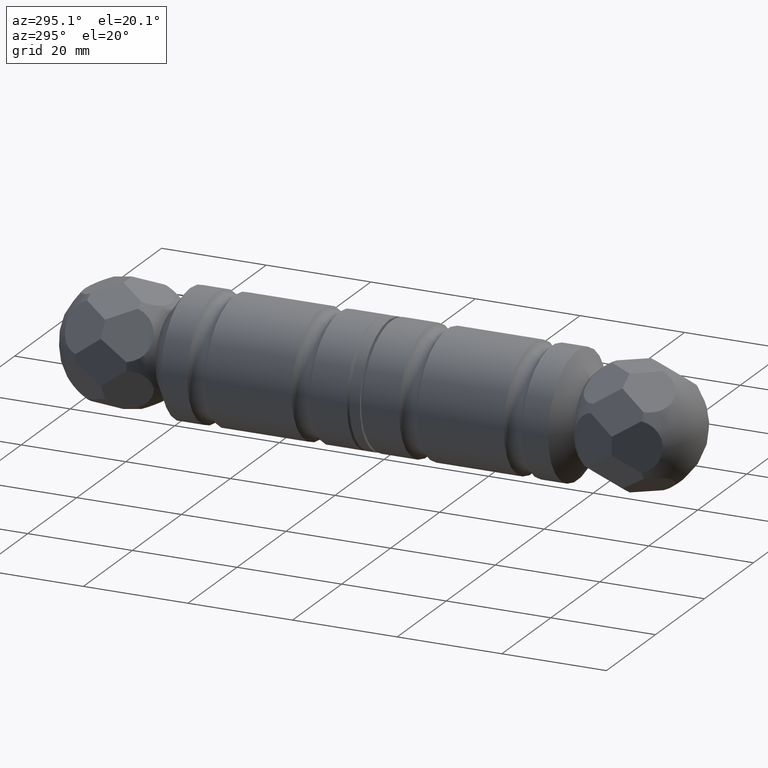
[diagram: clean part render]
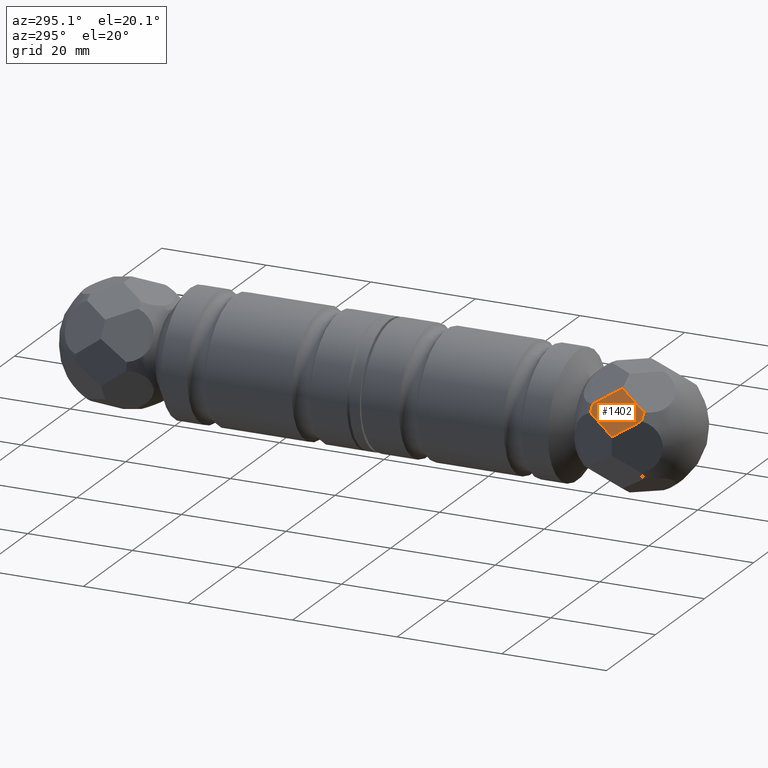
[diagram: same view with one face highlighted and labeled with its STEP entity id]
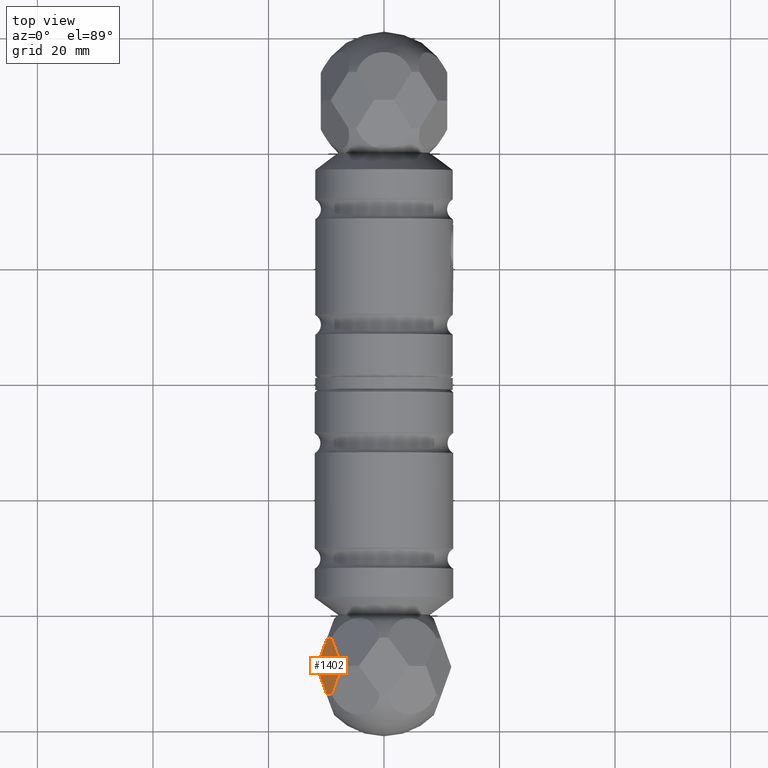
[diagram: same view with one face highlighted and labeled with its STEP entity id]
A machine part, auxiliary view. The second image highlights one B-rep face of the part: STEP entity #1402.
A second angle (top view) of the same face is appended — the face is thin or edge-on in the first view.
In plain terms, the highlighted planar face has unit normal (0.866, -0, -0.5).
Its self-contained STEP definition (entity closure, byte-faithful):
#386 = ORIENTED_EDGE ( 'NONE', *, *, #6112, .T. ) ;
#808 = DIRECTION ( 'NONE',  ( 0.5000000000000131006, 0.000000000000000000, -0.8660254037844309360 ) ) ;
#955 = FACE_OUTER_BOUND ( 'NONE', #6362, .T. ) ;
#1402 = ADVANCED_FACE ( 'NONE', ( #955 ), #8168, .F. ) ;
#1406 = LINE ( 'NONE', #11191, #11904 ) ;
#1703 = LINE ( 'NONE', #2192, #5814 ) ;
#2053 = CARTESIAN_POINT ( 'NONE',  ( -9.482978171439521375, 48.00000000000000000, -5.475000000000162181 ) ) ;
#2192 = CARTESIAN_POINT ( 'NONE',  ( -8.064733691444535779, 45.93520489747793789, -7.931471496905477814 ) ) ;
#2280 = VERTEX_POINT ( 'NONE', #6647 ) ;
#2699 = DIRECTION ( 'NONE',  ( 0.2942623679600563369, 0.8084792113654994949, -0.5096773720623277715 ) ) ;
#3102 = CARTESIAN_POINT ( 'NONE',  ( -10.90122265143456559, 45.93520489747792368, -3.018528503094711546 ) ) ;
#3130 = CARTESIAN_POINT ( 'NONE',  ( -9.482978171439521375, 48.00000000000000000, -5.475000000000162181 ) ) ;
#3350 = AXIS2_PLACEMENT_3D ( 'NONE', #3130, #9097, #8214 ) ;
#3547 = EDGE_CURVE ( 'NONE', #8722, #9438, #13161, .T. ) ;
#3645 = ORIENTED_EDGE ( 'NONE', *, *, #3547, .T. ) ;
#3690 = CARTESIAN_POINT ( 'NONE',  ( -9.482978171439521375, 48.00000000000000000, -5.475000000000162181 ) ) ;
#3850 = ORIENTED_EDGE ( 'NONE', *, *, #6368, .T. ) ;
#4132 = VERTEX_POINT ( 'NONE', #4740 ) ;
#4576 = AXIS2_PLACEMENT_3D ( 'NONE', #3690, #10826, #808 ) ;
#4740 = CARTESIAN_POINT ( 'NONE',  ( -9.075063361975905352, 43.15934694148805306, -6.181529175150896727 ) ) ;
#5077 = CARTESIAN_POINT ( 'NONE',  ( -9.890892980903251086, 52.84065305851190431, -4.768470824849226908 ) ) ;
#5550 = ORIENTED_EDGE ( 'NONE', *, *, #6625, .F. ) ;
#5814 = VECTOR ( 'NONE', #11357, 1000.000000000000000 ) ;
#6112 = EDGE_CURVE ( 'NONE', #9438, #8011, #1406, .T. ) ;
#6362 = EDGE_LOOP ( 'NONE', ( #6886, #3850, #3645, #386, #5550, #6363 ) ) ;
#6363 = ORIENTED_EDGE ( 'NONE', *, *, #8496, .T. ) ;
#6368 = EDGE_CURVE ( 'NONE', #6871, #8722, #10595, .T. ) ;
#6612 = VECTOR ( 'NONE', #10232, 1000.000000000000227 ) ;
#6625 = EDGE_CURVE ( 'NONE', #4132, #8011, #1703, .T. ) ;
#6647 = CARTESIAN_POINT ( 'NONE',  ( -9.890892980903243981, 43.15934694148809569, -4.768470824849239342 ) ) ;
#6871 = VERTEX_POINT ( 'NONE', #6925 ) ;
#6877 = EDGE_CURVE ( 'NONE', #6871, #2280, #8683, .T. ) ;
#6886 = ORIENTED_EDGE ( 'NONE', *, *, #6877, .F. ) ;
#6925 = CARTESIAN_POINT ( 'NONE',  ( -11.65274660861124012, 48.00000000000001421, -1.716850826159541654 ) ) ;
#8011 = VERTEX_POINT ( 'NONE', #9825 ) ;
#8168 = PLANE ( 'NONE',  #3350 ) ;
#8214 = DIRECTION ( 'NONE',  ( 0.5000000000000131006, -1.170965406187439180E-31, -0.8660254037844310471 ) ) ;
#8224 = VECTOR ( 'NONE', #2699, 1000.000000000000114 ) ;
#8496 = EDGE_CURVE ( 'NONE', #4132, #2280, #12953, .T. ) ;
#8683 = LINE ( 'NONE', #3102, #6612 ) ;
#8722 = VERTEX_POINT ( 'NONE', #5077 ) ;
#9097 = DIRECTION ( 'NONE',  ( 0.8660254037844311581, 5.854827030937196993E-32, 0.5000000000000132117 ) ) ;
#9438 = VERTEX_POINT ( 'NONE', #10389 ) ;
#9825 = CARTESIAN_POINT ( 'NONE',  ( -7.313209734267841711, 48.00000000000001421, -9.233149173840685009 ) ) ;
#10104 = DIRECTION ( 'NONE',  ( -0.8660254037844310471, -5.854827030937196993E-32, -0.5000000000000132117 ) ) ;
#10143 = DIRECTION ( 'NONE',  ( 0.5000000000000131006, -4.240582408499989204E-15, -0.8660254037844309360 ) ) ;
#10232 = DIRECTION ( 'NONE',  ( 0.2942623679600561148, -0.8084792113654998280, -0.5096773720623273274 ) ) ;
#10389 = CARTESIAN_POINT ( 'NONE',  ( -9.075063361975908904, 52.84065305851193983, -6.181529175150894062 ) ) ;
#10499 = DIRECTION ( 'NONE',  ( 0.2942623679600634423, -0.8084792113654891699, -0.5096773720623399839 ) ) ;
#10520 = AXIS2_PLACEMENT_3D ( 'NONE', #2053, #10104, #10143 ) ;
#10595 = LINE ( 'NONE', #10898, #8224 ) ;
#10826 = DIRECTION ( 'NONE',  ( -0.8660254037844310471, -5.854827030937196993E-32, -0.5000000000000132117 ) ) ;
#10898 = CARTESIAN_POINT ( 'NONE',  ( -10.90122265143456914, 50.06479510252209053, -3.018528503094705773 ) ) ;
#11191 = CARTESIAN_POINT ( 'NONE',  ( -8.064733691444534003, 50.06479510252207632, -7.931471496905481366 ) ) ;
#11357 = DIRECTION ( 'NONE',  ( 0.2942623679600631648, 0.8084792113654895029, -0.5096773720623396509 ) ) ;
#11904 = VECTOR ( 'NONE', #10499, 1000.000000000000000 ) ;
#12953 = CIRCLE ( 'NONE', #4576, 4.908920451586063827 ) ;
#13161 = CIRCLE ( 'NONE', #10520, 4.908920451586063827 ) ;